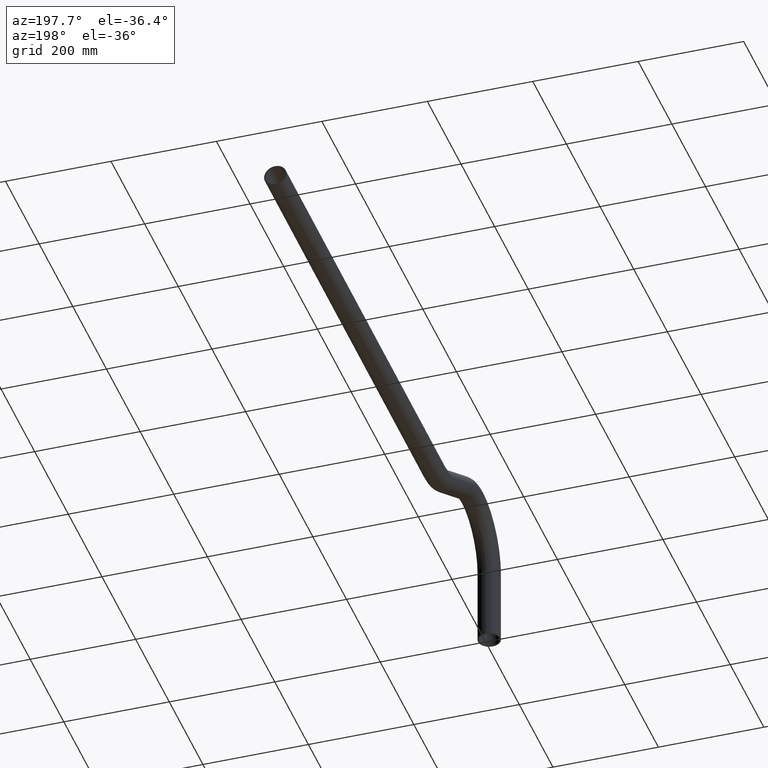
[diagram: clean part render]
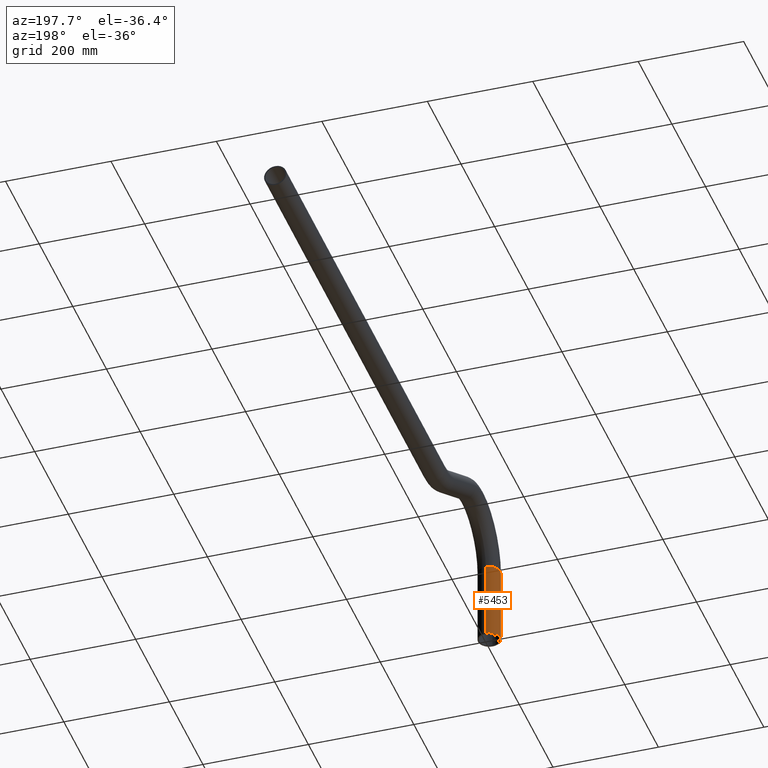
[diagram: same view with one face highlighted and labeled with its STEP entity id]
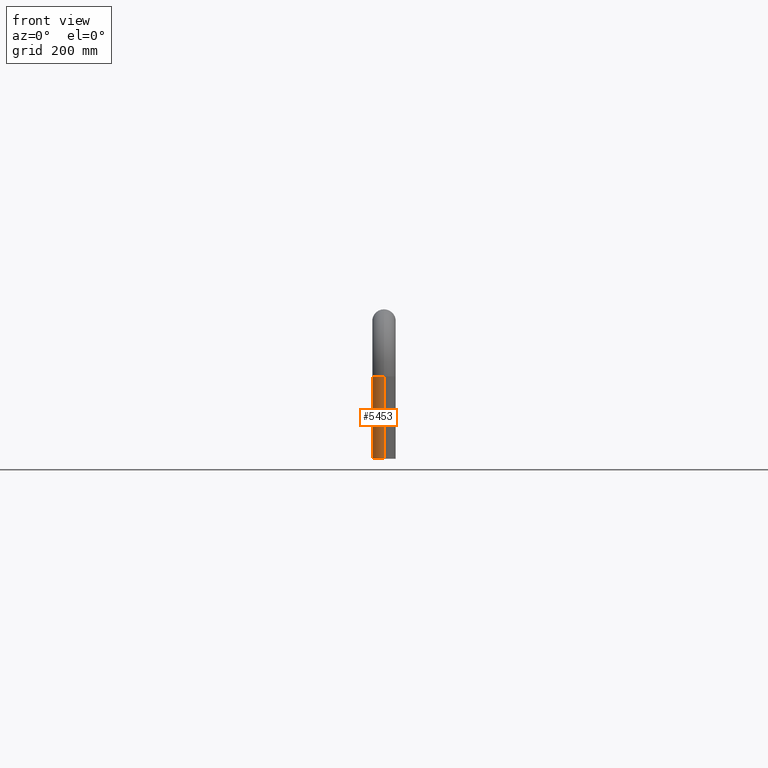
[diagram: same view with one face highlighted and labeled with its STEP entity id]
A machine part, auxiliary view. The second image highlights one B-rep face of the part: STEP entity #5453.
A second angle (front view) of the same face is appended — the face is thin or edge-on in the first view.
In plain terms, the highlighted cylindrical surface (edge-blend (fillet) strip) has radius 21.2 mm, axis along (-0, -0, -1).
Its self-contained STEP definition (entity closure, byte-faithful):
#505 = EDGE_CURVE ( 'NONE', #3451, #3468, #7781, .T. ) ;
#1013 = CARTESIAN_POINT ( 'NONE',  ( 0.0000000000000000000, -21.20000000000041500, 74.39999999999996300 ) ) ;
#1194 = EDGE_CURVE ( 'NONE', #3451, #9891, #2869, .T. ) ;
#1271 = AXIS2_PLACEMENT_3D ( 'NONE', #6494, #2416, #8094 ) ;
#1472 = VERTEX_POINT ( 'NONE', #7569 ) ;
#1613 = ORIENTED_EDGE ( 'NONE', *, *, #1194, .F. ) ;
#2150 = CIRCLE ( 'NONE', #9266, 21.19999999999999900 ) ;
#2416 = DIRECTION ( 'NONE',  ( 0.0000000000000000000, 0.0000000000000000000, 1.000000000000000000 ) ) ;
#2795 = DIRECTION ( 'NONE',  ( -0.0000000000000000000, -6.994852725712932700E-017, -1.000000000000000000 ) ) ;
#2869 = CIRCLE ( 'NONE', #1271, 21.19999999999999900 ) ;
#3451 = VERTEX_POINT ( 'NONE', #4117 ) ;
#3468 = VERTEX_POINT ( 'NONE', #10004 ) ;
#3532 = EDGE_CURVE ( 'NONE', #9891, #1472, #5966, .T. ) ;
#3759 = AXIS2_PLACEMENT_3D ( 'NONE', #1013, #6846, #6774 ) ;
#4001 = CARTESIAN_POINT ( 'NONE',  ( 2.596251214192388800E-015, -42.40000000000041800, 74.39999999999996300 ) ) ;
#4117 = CARTESIAN_POINT ( 'NONE',  ( 0.0000000000000000000, -4.163336342344337000E-013, 74.39999999999996300 ) ) ;
#4555 = ORIENTED_EDGE ( 'NONE', *, *, #8055, .T. ) ;
#5069 = CARTESIAN_POINT ( 'NONE',  ( 0.0000000000000000000, -21.20000000000042600, -74.40000000000002000 ) ) ;
#5453 = ADVANCED_FACE ( 'NONE', ( #8398 ), #6822, .T. ) ;
#5633 = ORIENTED_EDGE ( 'NONE', *, *, #505, .T. ) ;
#5966 = LINE ( 'NONE', #10178, #10052 ) ;
#6494 = CARTESIAN_POINT ( 'NONE',  ( 0.0000000000000000000, -21.20000000000041500, 74.39999999999996300 ) ) ;
#6567 = DIRECTION ( 'NONE',  ( 0.0000000000000000000, 0.0000000000000000000, 1.000000000000000000 ) ) ;
#6774 = DIRECTION ( 'NONE',  ( 0.0000000000000000000, 1.000000000000000000, 0.0000000000000000000 ) ) ;
#6822 = CYLINDRICAL_SURFACE ( 'NONE', #3759, 21.19999999999999900 ) ;
#6846 = DIRECTION ( 'NONE',  ( -0.0000000000000000000, -6.994852725712932700E-017, -1.000000000000000000 ) ) ;
#7384 = VECTOR ( 'NONE', #2795, 1000.000000000000000 ) ;
#7569 = CARTESIAN_POINT ( 'NONE',  ( 2.596251214192389200E-015, -42.40000000000042500, -74.40000000000002000 ) ) ;
#7727 = DIRECTION ( 'NONE',  ( -0.0000000000000000000, -6.994852725712932700E-017, -1.000000000000000000 ) ) ;
#7781 = LINE ( 'NONE', #10131, #7384 ) ;
#7953 = EDGE_LOOP ( 'NONE', ( #10239, #1613, #5633, #4555 ) ) ;
#8055 = EDGE_CURVE ( 'NONE', #3468, #1472, #2150, .T. ) ;
#8094 = DIRECTION ( 'NONE',  ( 1.000000000000000000, 0.0000000000000000000, 0.0000000000000000000 ) ) ;
#8398 = FACE_OUTER_BOUND ( 'NONE', #7953, .T. ) ;
#9266 = AXIS2_PLACEMENT_3D ( 'NONE', #5069, #6567, #9865 ) ;
#9865 = DIRECTION ( 'NONE',  ( 1.000000000000000000, 0.0000000000000000000, 0.0000000000000000000 ) ) ;
#9891 = VERTEX_POINT ( 'NONE', #4001 ) ;
#10004 = CARTESIAN_POINT ( 'NONE',  ( 0.0000000000000000000, -4.267419750902945500E-013, -74.40000000000002000 ) ) ;
#10052 = VECTOR ( 'NONE', #7727, 1000.000000000000000 ) ;
#10131 = CARTESIAN_POINT ( 'NONE',  ( 0.0000000000000000000, -4.163336342344337000E-013, 74.39999999999996300 ) ) ;
#10178 = CARTESIAN_POINT ( 'NONE',  ( 2.596251214192388800E-015, -42.40000000000041800, 74.39999999999996300 ) ) ;
#10239 = ORIENTED_EDGE ( 'NONE', *, *, #3532, .F. ) ;